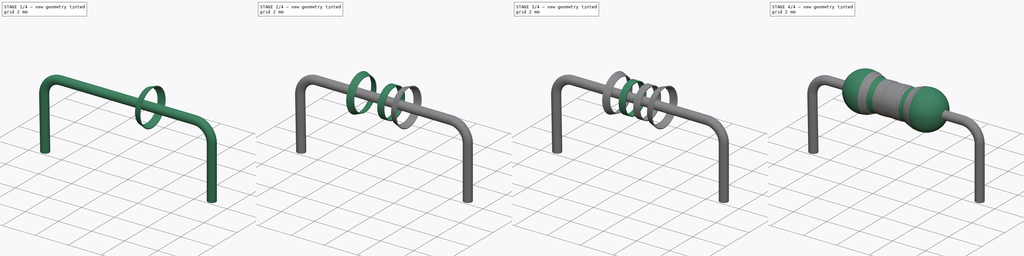
[diagram: build sequence overview — one tinted view per stage of 4, left to right]
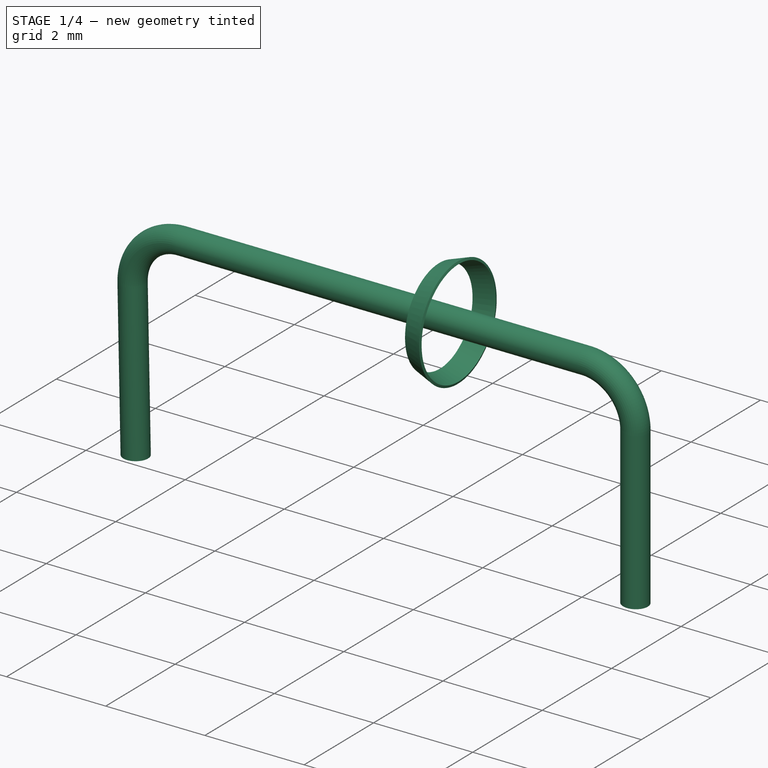
[diagram: stage 1 of 4 — iso view after this stage's code; geometry added in this stage tinted green]
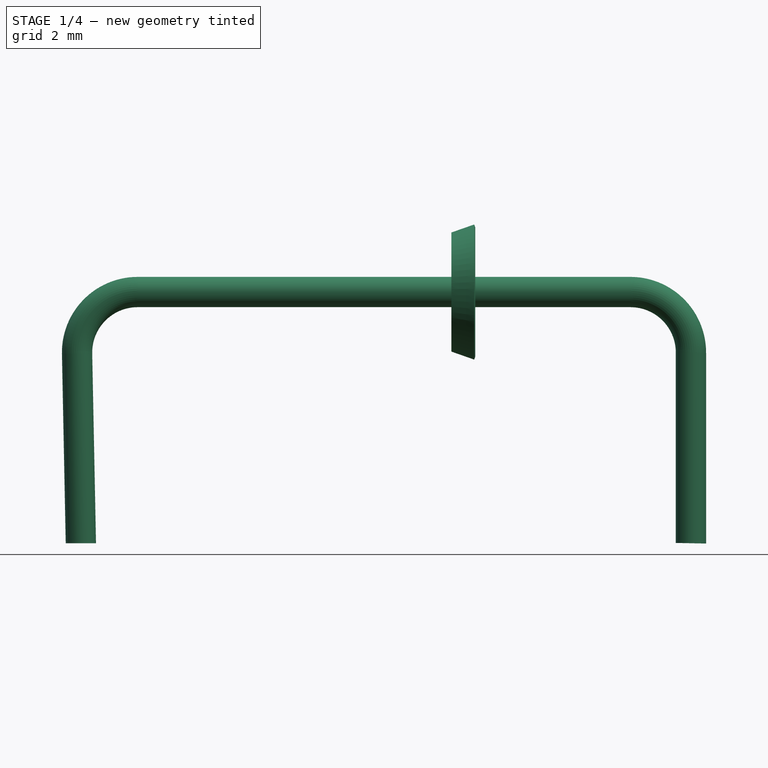
[diagram: stage 1 of 4 — front view after this stage's code; geometry added in this stage tinted green]
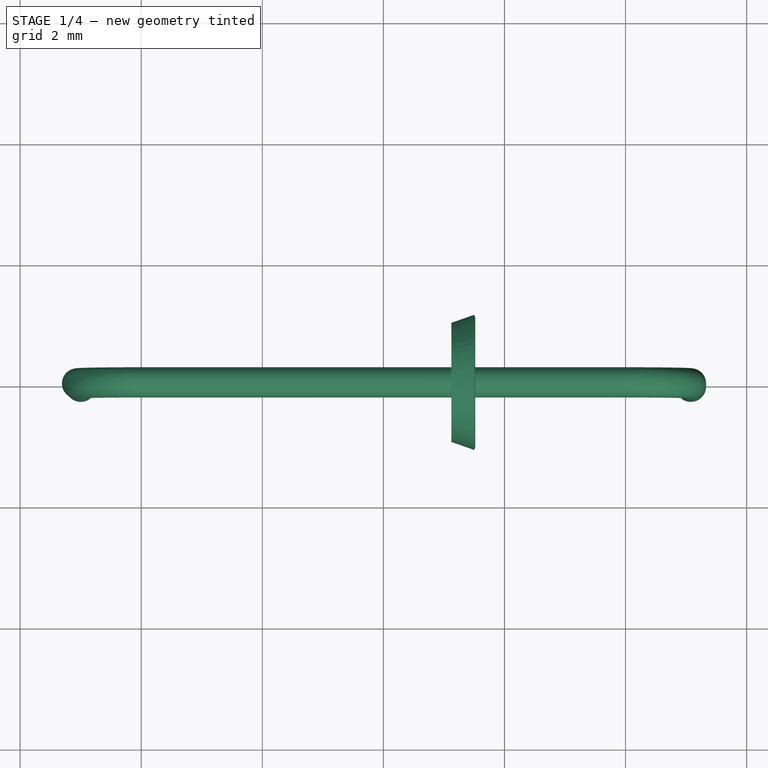
[diagram: stage 1 of 4 — top view after this stage's code; geometry added in this stage tinted green]
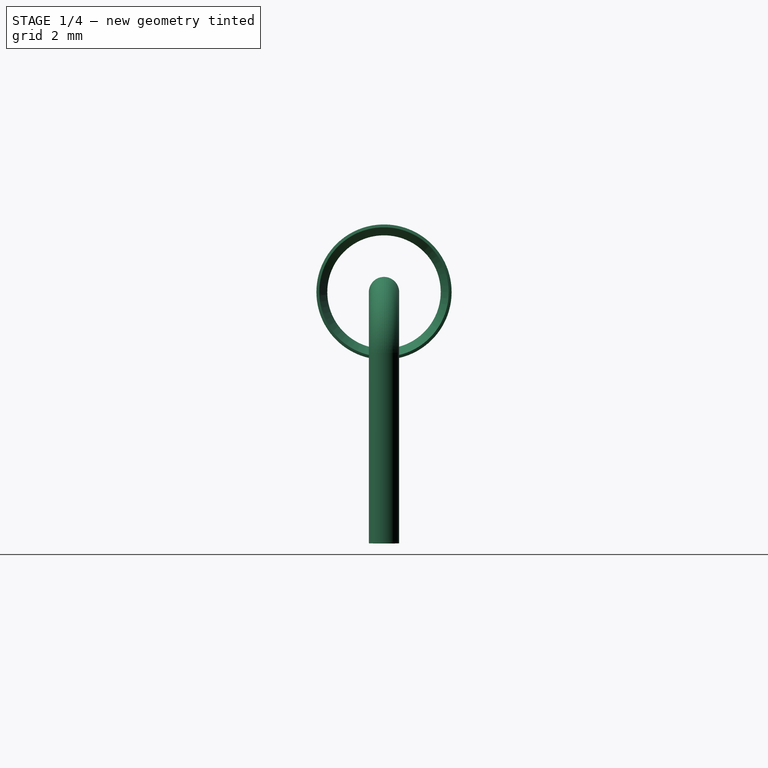
[diagram: stage 1 of 4 — right view after this stage's code; geometry added in this stage tinted green]
FCSTD DOCUMENT  (FreeCAD 0.15R4671 (Git))
Label: res-1_4w-1K
License: All rights reserved
LicenseURL: http://en.wikipedia.org/wiki/All_rights_reserved
objects: Part::Part2DObjectPython×17, Part::FeaturePython×6, Part::Sweep×5, App::DocumentObjectGroup×4, Sketcher::SketchObject×1, PartDesign::Revolution×1, Part::Mirroring×1, Part::MultiFuse×1, Part::Feature×1
note: 34 computed .brp shape members not serialized (recipe doc carries the construction recipe); baked Part::Feature solids carry a one-line shape summary decoded from their .brp

FEATURE [Part::Part2DObjectPython] DWire  # Draft 2D object (typed FeaturePython)
  ChamferSize = 0
  Closed = false
  End = (5.08,-4.14917,0)
  FilletRadius = 1
  Length = 17.5804
  MakeFace = true
  Points = (4) [(-4.99702,-4.14917,0),(-5.08,0,0),(5.08,0,0),(5.08,-4.14917,0)]
  Start = (-4.99702,-4.14917,0)
FEATURE [Part::Part2DObjectPython] Circle  # Draft 2D object (typed FeaturePython)
  FirstAngle = 0
  LastAngle = 0
  MakeFace = true
  Placement = pos=(-4.99702,-4.14917,0) rot=(1,0,0;1.5708rad)
  Radius = 0.25
FEATURE [Part::Sweep] Sweep
  Frenet = false
  Placement = pos=(0,0,0) rot=(1,0,0;1.5708rad)
  Sections = -> [Circle]
  Solid = true
  Spine = -> DWire
  Transition = 1
FEATURE [Part::Sweep] Sweep004  label="ring-4"
  Frenet = false
  Sections = -> [Rectangle003]
  Solid = true
  Spine = -> Circle004 [Edge1]
  Transition = 1
FEATURE [Part::FeaturePython] Clone004  label="Clone of ring-4"  # Draft clone (typed FeaturePython)
  Objects = -> [Sweep004]
  Scale = (1,1,1)
FEATURE [Part::FeaturePython] Clone005  label="Clone of Sweep"  # Draft clone (typed FeaturePython)
  Objects = -> [Sweep]
  Placement = pos=(0,0,0) rot=(1,0,0;1.5708rad)
  Scale = (1,1,1)
FEATURE [Part::Feature] Compound001  label="res-1_4-1K"
  shape: bbox 10.64 x 2.3 x 5.304 mm, 28 faces, 6 solids (baked)
FEATURE [App::DocumentObjectGroup] Group003  label="res-materials"
  Group = -> [Clone,Clone002,Clone001,Clone004,Clone005,Clone003]
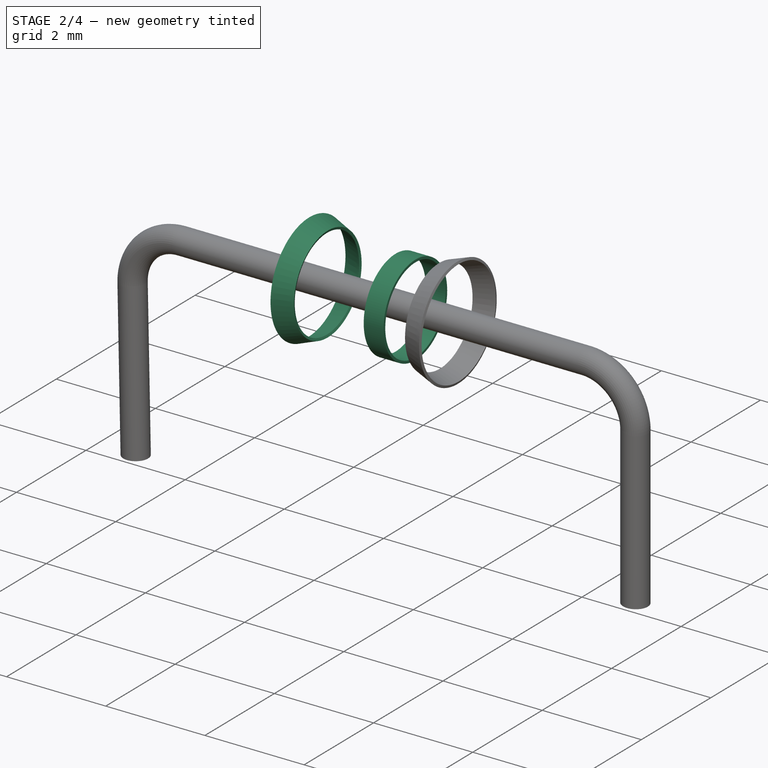
[diagram: stage 2 of 4 — iso view after this stage's code; geometry added in this stage tinted green]
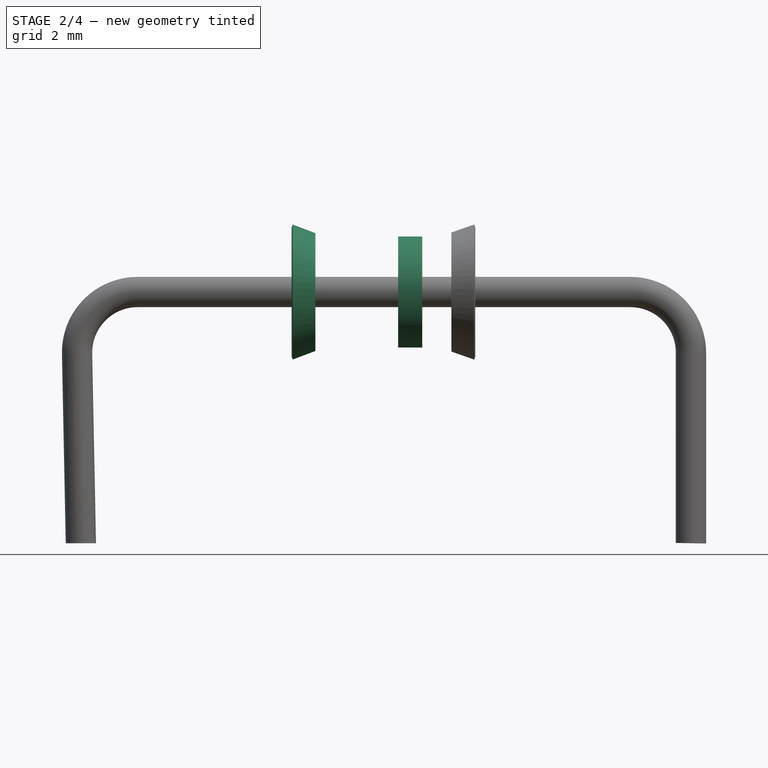
[diagram: stage 2 of 4 — front view after this stage's code; geometry added in this stage tinted green]
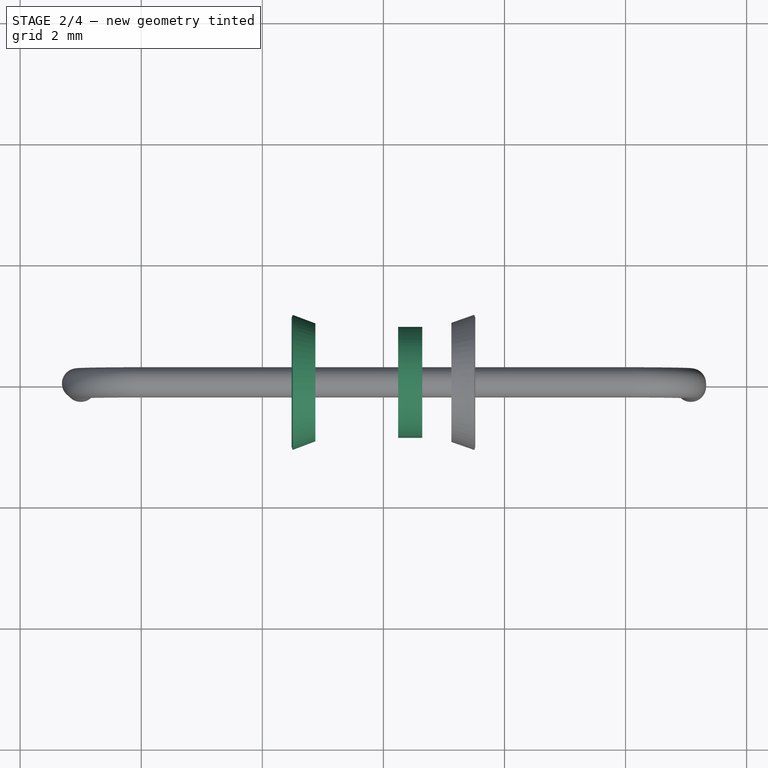
[diagram: stage 2 of 4 — top view after this stage's code; geometry added in this stage tinted green]
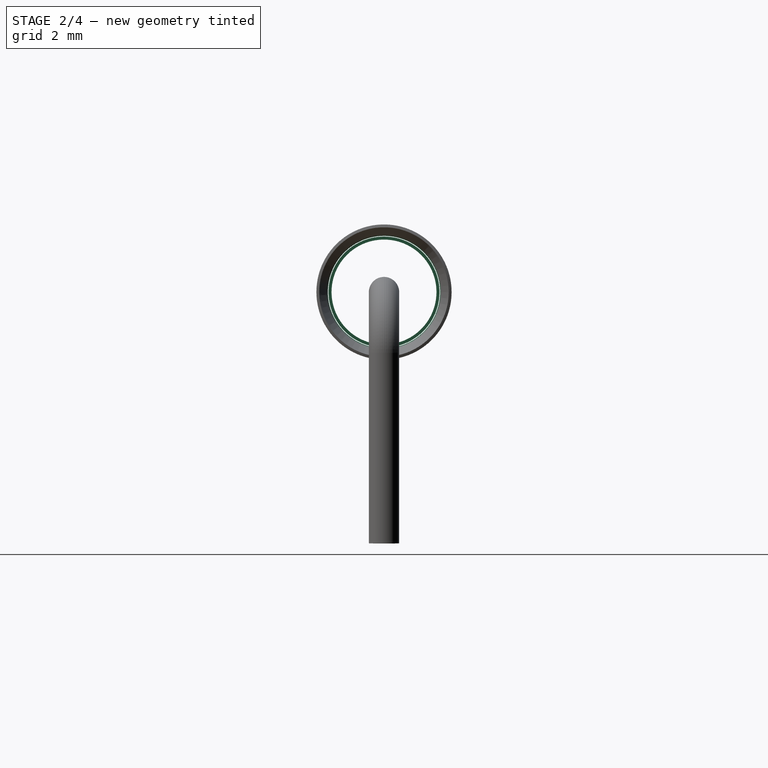
[diagram: stage 2 of 4 — right view after this stage's code; geometry added in this stage tinted green]
FEATURE [Part::Sweep] Sweep002  label="ring-1"
  Frenet = false
  Sections = -> [Rectangle002]
  Solid = true
  Spine = -> Circle003 [Edge1]
  Transition = 1
FEATURE [Part::Sweep] Sweep003  label="ring-3"
  Frenet = false
  Sections = -> [Rectangle001]
  Solid = true
  Spine = -> Circle002 [Edge1]
  Transition = 1
FEATURE [Part::FeaturePython] Clone003  label="Clone of ring-3"  # Draft clone (typed FeaturePython)
  Objects = -> [Sweep003]
  Scale = (1,1,1)
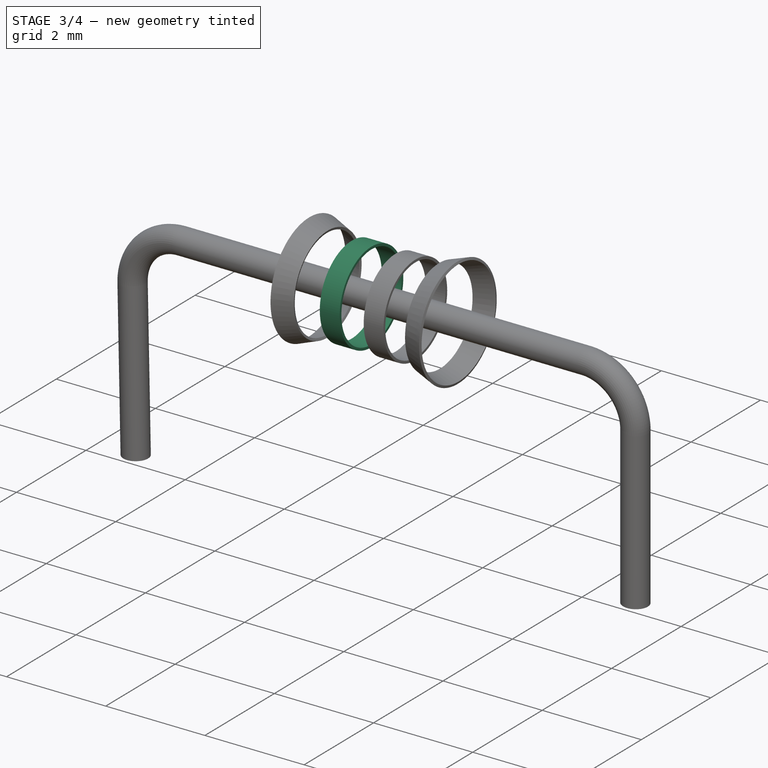
[diagram: stage 3 of 4 — iso view after this stage's code; geometry added in this stage tinted green]
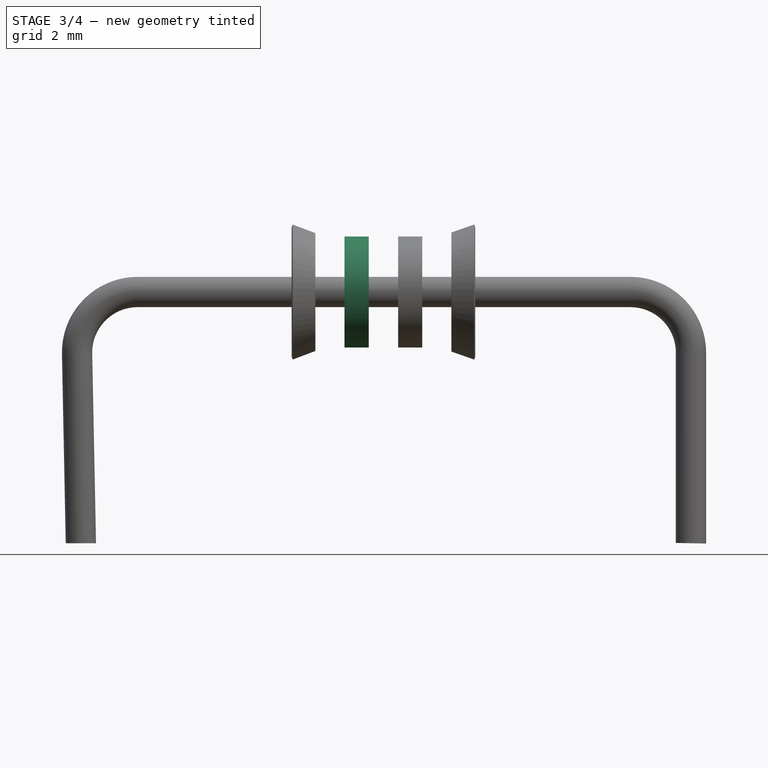
[diagram: stage 3 of 4 — front view after this stage's code; geometry added in this stage tinted green]
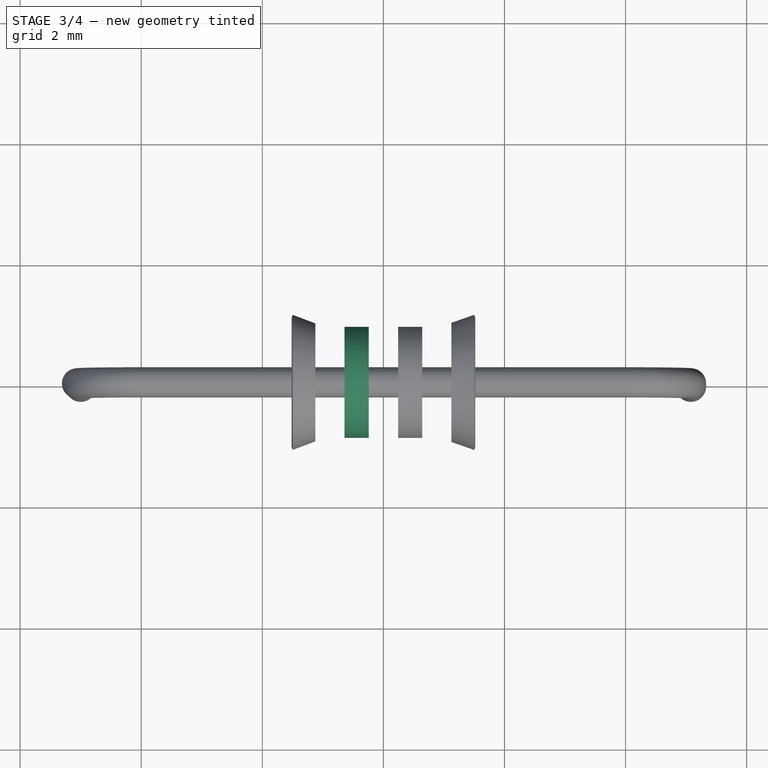
[diagram: stage 3 of 4 — top view after this stage's code; geometry added in this stage tinted green]
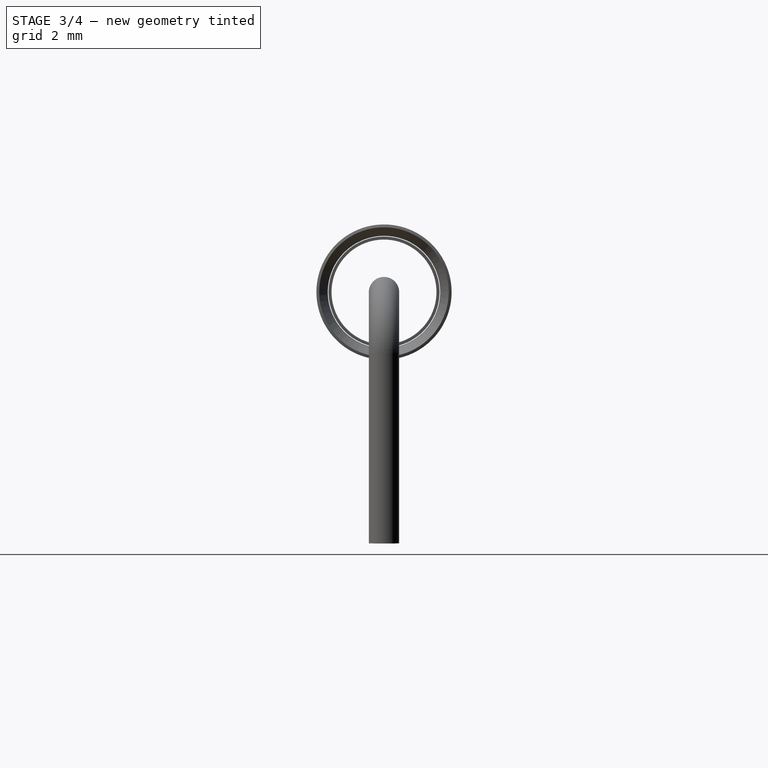
[diagram: stage 3 of 4 — right view after this stage's code; geometry added in this stage tinted green]
FEATURE [Part::Part2DObjectPython] Line  # Draft 2D object (typed FeaturePython)
  ChamferSize = 0
  Closed = false
  End = (-1.32788,0,1)
  FilletRadius = 0
  Length = 1.32788
  MakeFace = true
  Points = (2) [(0,0,1),(-1.32788,0,1)]
  Start = (0,0,1)
FEATURE [Part::Part2DObjectPython] Line001  # Draft 2D object (typed FeaturePython)
  ChamferSize = 0
  Closed = false
  End = (-0.442625,0,-0.24995)
  FilletRadius = 0
  Length = 1.24995
  MakeFace = true
  Placement = pos=(0.221313,0,0) rot=(0,0,1;0rad)
  Points = (2) [(-0.663938,0,1),(-0.663938,0,-0.24995)]
  Start = (-0.442625,0,1)
FEATURE [Part::Part2DObjectPython] Line002  # Draft 2D object (typed FeaturePython)
  ChamferSize = 0
  Closed = false
  End = (1.32788,0,1)
  FilletRadius = 0
  Length = 1.32788
  MakeFace = true
  Points = (2) [(-6.12323e-17,0,1),(1.32788,0,1)]
  Start = (0,0,1)
FEATURE [Part::Part2DObjectPython] Line003  # Draft 2D object (typed FeaturePython)
  ChamferSize = 0
  Closed = false
  End = (0.442625,0,-0.24995)
  FilletRadius = 0
  Length = 1.24995
  MakeFace = true
  Placement = pos=(-0.221313,0,0) rot=(0,0,1;0rad)
  Points = (2) [(0.663938,0,1),(0.663938,0,-0.24995)]
  Start = (0.442625,0,1)
FEATURE [Part::Part2DObjectPython] Line004  # Draft 2D object (typed FeaturePython)
  ChamferSize = 0
  Closed = false
  End = (0.555732,0,0.918963)
  FilletRadius = 0
  Length = 1.2
  MakeFace = true
  Placement = pos=(0.090015,0,-0.332038) rot=(0,0,1;0rad)
  Points = (2) [(-0.734283,0,1.251),(0.465717,0,1.251)]
  Start = (-0.644268,0,0.918963)
FEATURE [Part::Part2DObjectPython] Line005  # Draft 2D object (typed FeaturePython)
  ChamferSize = 0
  Closed = false
  End = (0.8,0,0)
  FilletRadius = 0
  Length = 1.6
  MakeFace = true
  Points = (2) [(-0.8,0,0),(0.8,0,0)]
  Start = (-0.8,0,0)
FEATURE [Part::Part2DObjectPython] Circle001  # Draft 2D object (typed FeaturePython)
  FirstAngle = 0
  LastAngle = 0
  MakeFace = false
  Placement = pos=(-0.442625,0,0) rot=(0.57735,0.57735,0.57735;2.0944rad)
  Radius = 0.918963
FEATURE [Part::Part2DObjectPython] Circle002  # Draft 2D object (typed FeaturePython)
  FirstAngle = 0
  LastAngle = 0
  MakeFace = false
  Placement = pos=(0.442625,0,0) rot=(0.57735,0.57735,0.57735;2.0944rad)
  Radius = 0.918963
FEATURE [Part::Part2DObjectPython] Circle003  # Draft 2D object (typed FeaturePython)
  FirstAngle = 0
  LastAngle = 0
  MakeFace = false
  Placement = pos=(-1.32788,0,0) rot=(0.57735,0.57735,0.57735;2.0944rad)
  Radius = 1.05
FEATURE [Part::Part2DObjectPython] Circle004  # Draft 2D object (typed FeaturePython)
  FirstAngle = 0
  LastAngle = 0
  MakeFace = false
  Placement = pos=(1.32788,0,0) rot=(0.57735,0.57735,0.57735;2.0944rad)
  Radius = 1.05
FEATURE [Part::Part2DObjectPython] Rectangle  # Draft 2D object (typed FeaturePython)
  ChamferSize = 0
  FilletRadius = 0
  Height = 0.05
  Length = 0.4
  MakeFace = true
  Placement = pos=(-0.642625,0,0.86668) rot=(1,0,0;1.5708rad)
FEATURE [Part::Part2DObjectPython] Rectangle001  # Draft 2D object (typed FeaturePython)
  ChamferSize = 0
  FilletRadius = 0
  Height = 0.05
  Length = 0.4
  MakeFace = true
  Placement = pos=(0.242625,0,0.86668) rot=(1,0,0;1.5708rad)
FEATURE [Part::Part2DObjectPython] Line006  # Draft 2D object (typed FeaturePython)
  ChamferSize = 0
  Closed = false
  End = (-1.32788,0,1.31637)
  FilletRadius = 0
  Length = 1.31637
  MakeFace = true
  Points = (2) [(-1.32788,0,0),(-1.32788,0,1.31637)]
  Start = (-1.32788,0,0)
FEATURE [Part::Part2DObjectPython] Rectangle002  # Draft 2D object (typed FeaturePython)
  ChamferSize = 0
  FilletRadius = 0
  Height = 0.05
  Length = 0.4
  MakeFace = true
  Placement = pos=(-1.51496,0,1.06858) rot=(0.968228,0.176824,-0.176824;1.60308rad)
FEATURE [Part::Part2DObjectPython] Rectangle003  # Draft 2D object (typed FeaturePython)
  ChamferSize = 0
  FilletRadius = 0
  Height = 0.05
  Length = 0.4
  MakeFace = true
  Placement = pos=(1.13979,0,0.936695) rot=(0.972092,-0.165886,0.165886;1.5991rad)
FEATURE [Part::Sweep] Sweep001  label="ring-2"
  Frenet = false
  Sections = -> [Rectangle]
  Solid = true
  Spine = -> Circle001
  Transition = 1
FEATURE [Part::FeaturePython] Clone001  label="Clone of ring-2"  # Draft clone (typed FeaturePython)
  Objects = -> [Sweep001]
  Scale = (1,1,1)
FEATURE [Part::FeaturePython] Clone002  label="Clone of ring-1"  # Draft clone (typed FeaturePython)
  Objects = -> [Sweep002]
  Scale = (1,1,1)
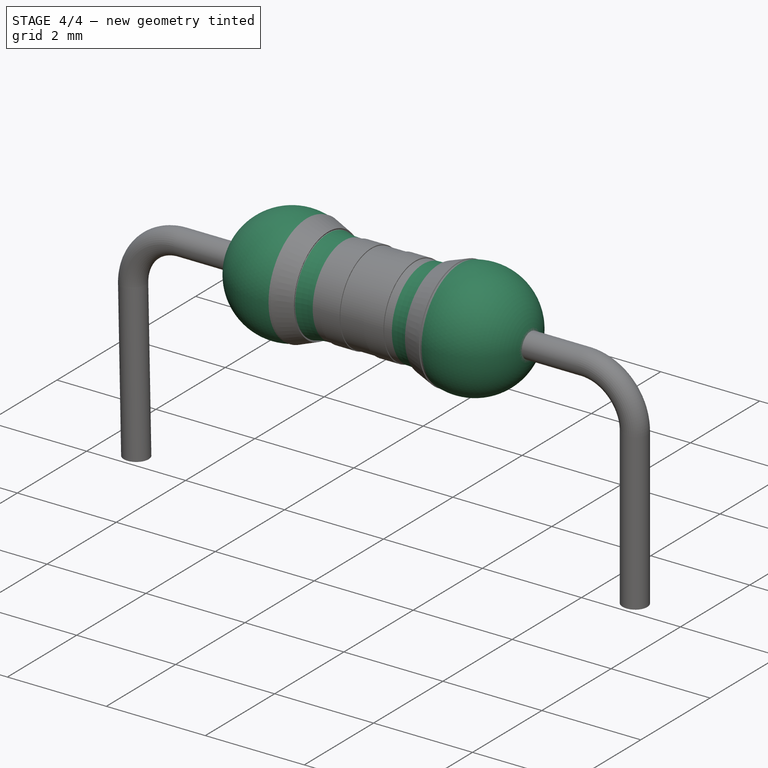
[diagram: stage 4 of 4 — iso view after this stage's code; geometry added in this stage tinted green]
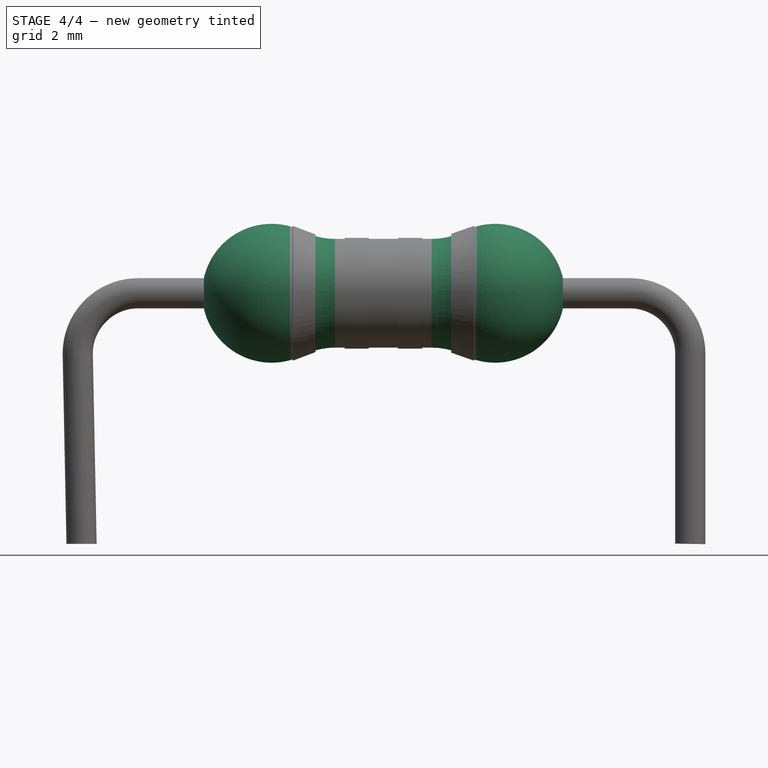
[diagram: stage 4 of 4 — front view after this stage's code; geometry added in this stage tinted green]
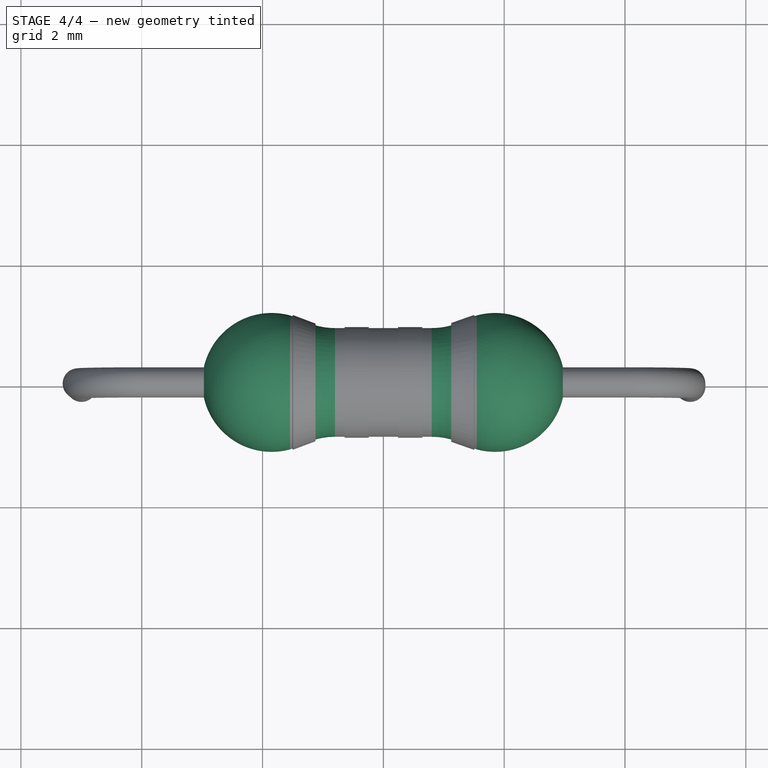
[diagram: stage 4 of 4 — top view after this stage's code; geometry added in this stage tinted green]
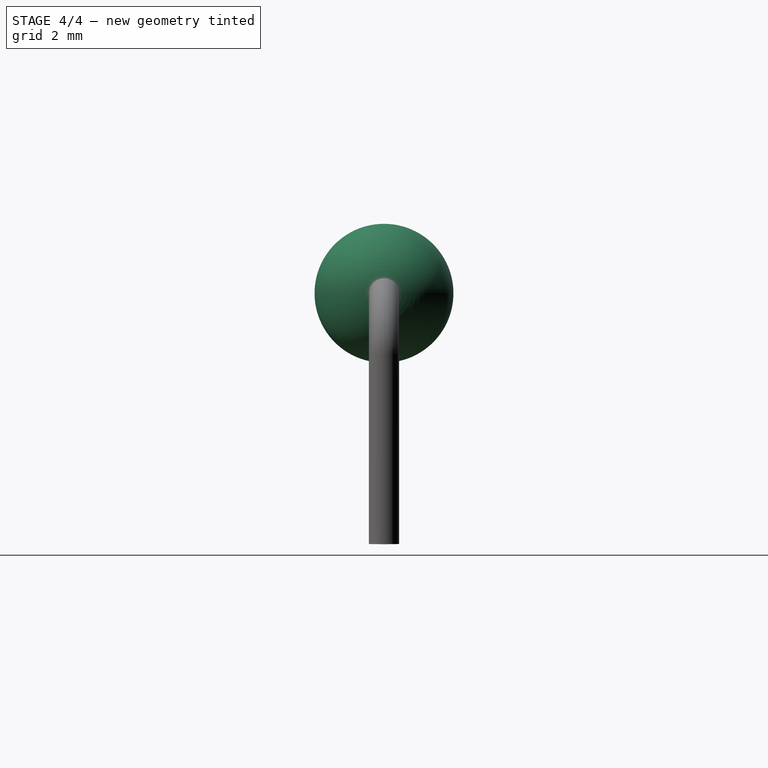
[diagram: stage 4 of 4 — right view after this stage's code; geometry added in this stage tinted green]
FEATURE [Sketcher::SketchObject] Sketch
  sketch-geometry (8):
    g0: LineSegment [constr] StartX=-1.84996 StartY=0 StartZ=0 EndX=-1.84996 EndY=1.15 EndZ=0
    g1: LineSegment StartX=0 StartY=0.9 StartZ=0 EndX=0 EndY=0 EndZ=0
    g2: LineSegment StartX=-0.8 StartY=0.9 StartZ=0 EndX=0 EndY=0.9 EndZ=0
    g3: ArcOfCircle CenterX=-0.8 CenterY=2.08 CenterZ=0 NormalX=0 NormalY=0 NormalZ=1 Radius=1.18 StartAngle=4.24859 EndAngle=4.71239
    g4: ArcOfCircle CenterX=-1.84996 CenterY=0 CenterZ=0 NormalX=0 NormalY=0 NormalZ=1 Radius=1.15 StartAngle=1.09956 EndAngle=3.14159
    g5: LineSegment [constr] StartX=-0.8 StartY=2.08 StartZ=0 EndX=-0.8 EndY=0.9 EndZ=0
    g6: LineSegment [constr] StartX=-1.32788 StartY=1.02466 StartZ=0 EndX=-1.84996 EndY=0 EndZ=0
    g7: LineSegment StartX=-2.99996 StartY=0 StartZ=0 EndX=0 EndY=0 EndZ=0
  constraints (26):
    c: PointOnObject(g0,g-1)
    c: Vertical(g0)
    c: DistanceY(g0) = 1.15
    c: PointOnObject(g1,g-1)
    c: Vertical(g1)
    c: DistanceY(g1) = -0.9
    c: PointOnObject(g1,g-2)
    c: PointOnObject(g1,g2)
    c: DistanceX(g2) = 0.8
    c: Coincident(g3,g2)
    c: Coincident(g4,g3)
    c: PointOnObject(g0,g4)
    c: PointOnObject(g4,g0)
    c: Coincident(g0,g4)
    c: Radius(g3) = 1.18
    c: Vertical(g5)
    c: Coincident(g5,g2)
    c: Coincident(g5,g3)
    c: Horizontal(g2)
    c: Coincident(g2,g1)
    c: Coincident(g6,g3)
    c: Coincident(g6,g0)
    c: Angle(g6,g0) = 0.471239
    c: Horizontal(g7)
    c: Coincident(g7,g-1)
    c: Coincident(g7,g4)
FEATURE [PartDesign::Revolution] Revolution
  Angle = 360
  Axis = (1,0,0)
  Base = (0,0,0)
  ReferenceAxis = -> Sketch [H_Axis]
  Sketch = -> Sketch
FEATURE [Part::Mirroring] Part__Mirroring  label="Revolution (Mirror #1)"
  Base = (0,0,0)
  Normal = (1,0,0)
  Source = -> Revolution
FEATURE [Part::MultiFuse] Fusion  label="res-body"
  Shapes = -> [Part__Mirroring,Revolution]
FEATURE [App::DocumentObjectGroup] Group  label="construction-lines"
  Group = -> [Line,Line001,Line002,Line003,Line004,Line005,Circle001,Circle002,Circle003,Circle004,Line006]
FEATURE [App::DocumentObjectGroup] Group001  label="wire"
  Group = -> [DWire,Sweep]
FEATURE [App::DocumentObjectGroup] Group002  label="src"
  Group = -> [Fusion,Sweep001,Sweep002,Sweep003,Sweep004,Group,Group001]
FEATURE [Part::FeaturePython] Clone  label="Clone of res-body"  # Draft clone (typed FeaturePython)
  Objects = -> [Fusion]
  Scale = (1,1,1)
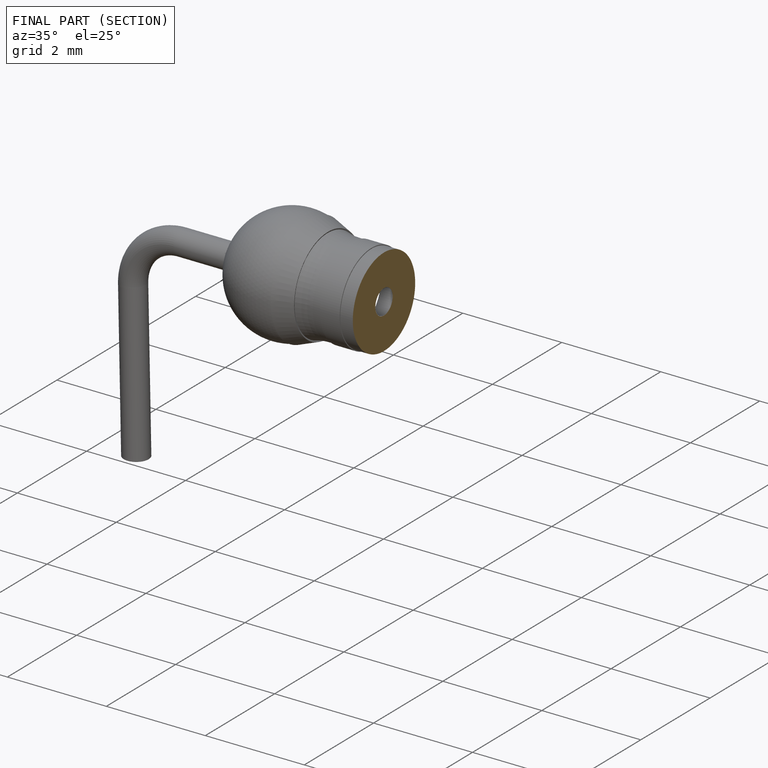
[diagram: finished part — half-section view (interior)]
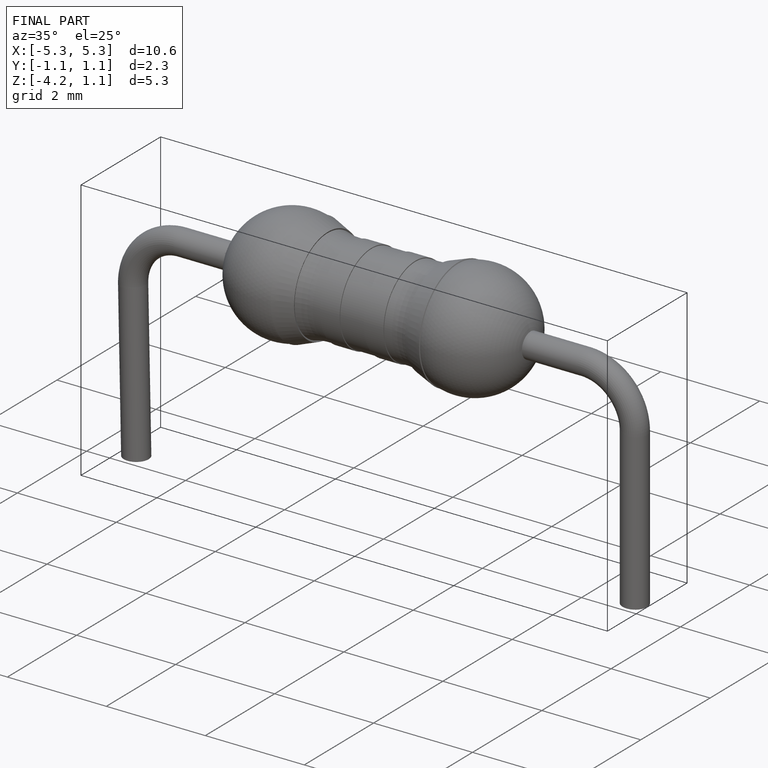
[diagram: finished part — iso view with bounding-box wireframe]
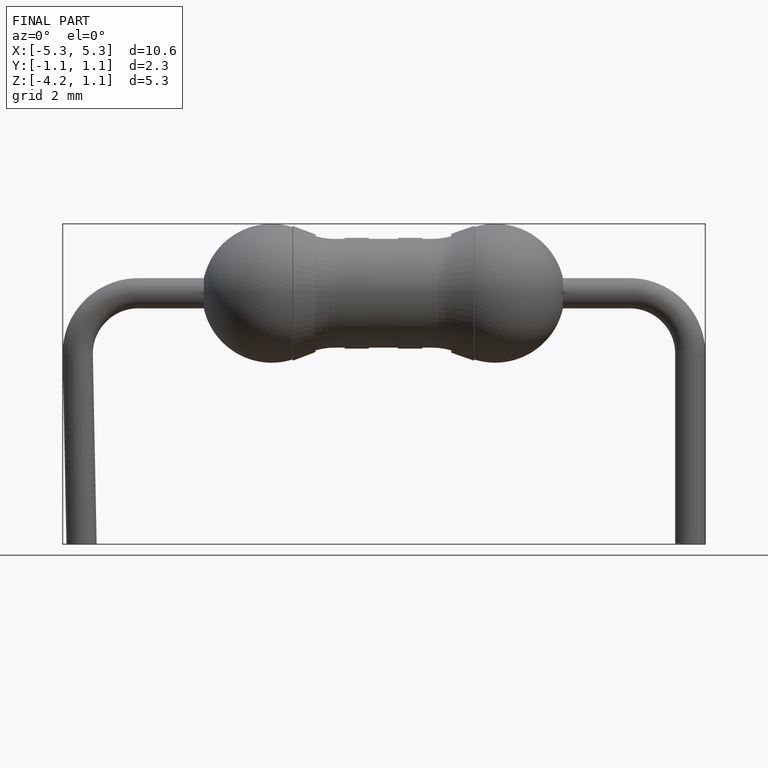
[diagram: finished part — front view with bounding-box wireframe]
